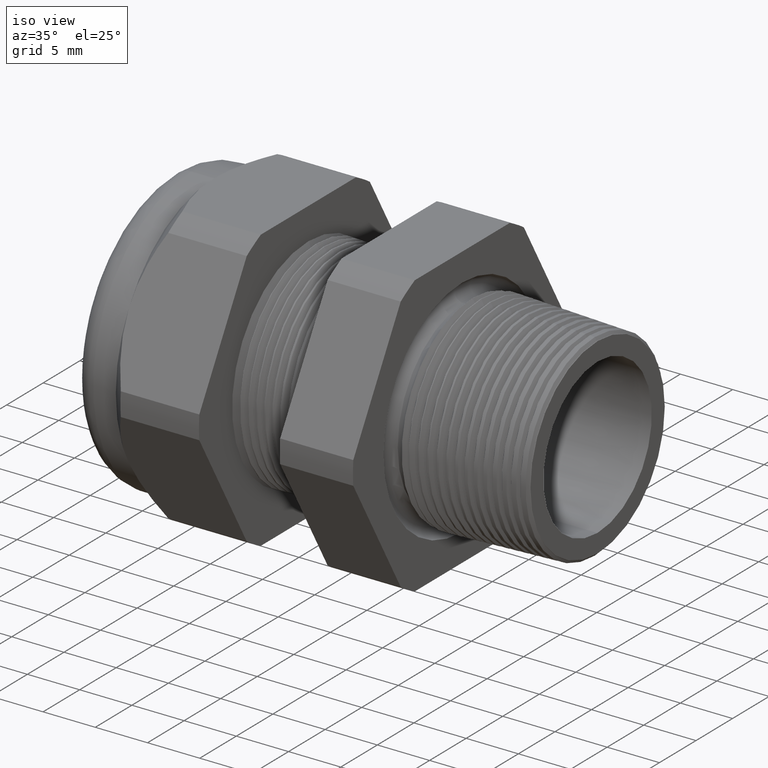
[diagram: clean part render]
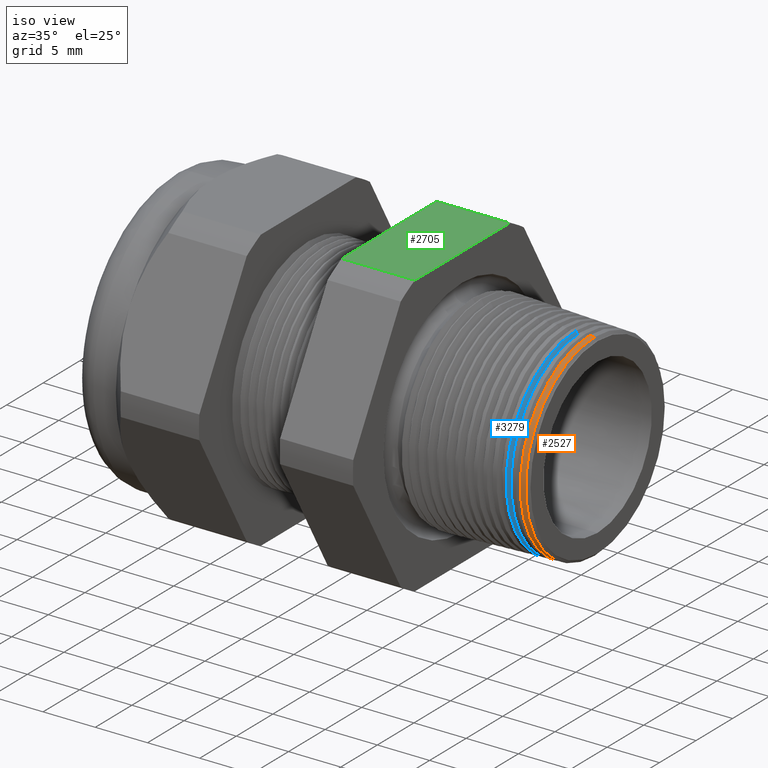
[diagram: same view with three faces highlighted in distinct colors, each labeled with its STEP entity id]
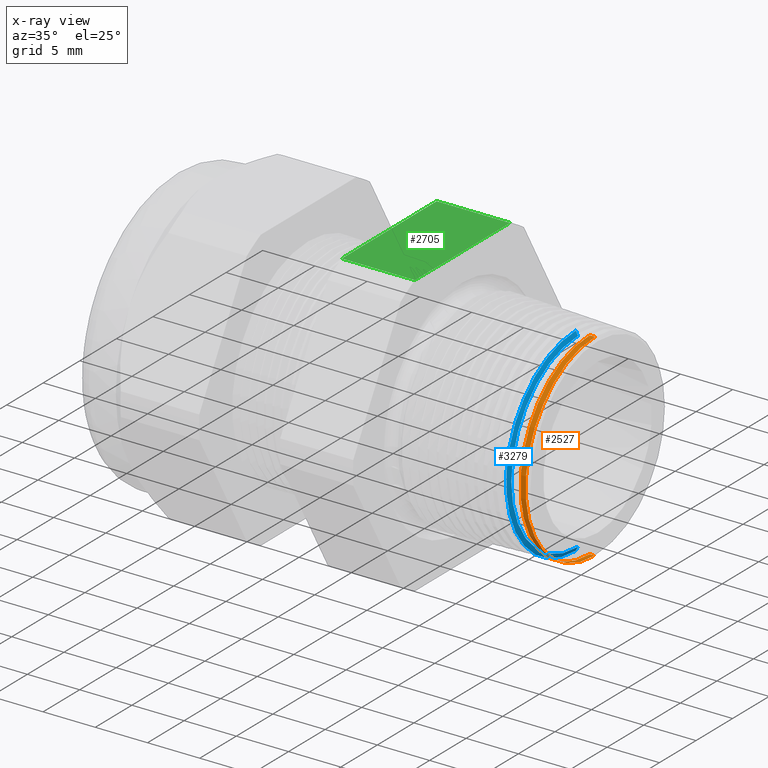
[diagram: x-ray of the same camera — body ghosted, the three highlighted faces saturated]
A machine part, iso view with three faces highlighted in distinct colors.
The next image is the same camera in x-ray (body ghosted, the three faces saturated) — at least one of them is partly hidden behind the body in this view.
Their STEP definitions:

[orange] entity #2527 — the highlighted conical surface has half-angle 2 deg.
#769 = CARTESIAN_POINT ( 'NONE',  ( 0.1892703024426583800, 0.0000000000000000000, 0.3723000518815622900 ) ) ;
#775 = CARTESIAN_POINT ( 'NONE',  ( 0.1892703024426583800, 4.563501851446686400E-017, -0.3723000518815622900 ) ) ;
#851 = CARTESIAN_POINT ( 'NONE',  ( 0.1699034186660586300, 4.567643034301885800E-017, -0.3729763583656983100 ) ) ;
#857 = CARTESIAN_POINT ( 'NONE',  ( 0.1699034186660586300, 0.0000000000000000000, 0.3729763583656983100 ) ) ;
#1515 = DIRECTION ( 'NONE',  ( -0.9993908270190959800, 4.273955692856259700E-018, -0.03489949670249376700 ) ) ;
#1516 = VECTOR ( 'NONE', #1515, 39.37007874015748100 ) ;
#1517 = CARTESIAN_POINT ( 'NONE',  ( 0.2000000000000000400, 4.554772048132102800E-017, -0.3719253625864463700 ) ) ;
#1524 = LINE ( 'NONE', #1517, #1516 ) ;
#1526 = DIRECTION ( 'NONE',  ( -0.9993908270190959800, 0.0000000000000000000, 0.03489949670249376700 ) ) ;
#1527 = VECTOR ( 'NONE', #1526, 39.37007874015748100 ) ;
#1528 = CARTESIAN_POINT ( 'NONE',  ( 0.2000000000000000400, 0.0000000000000000000, 0.3719253625864463700 ) ) ;
#1533 = LINE ( 'NONE', #1528, #1527 ) ;
#1977 = DIRECTION ( 'NONE',  ( 0.0000000000000000000, 0.0000000000000000000, -1.000000000000000000 ) ) ;
#1978 = DIRECTION ( 'NONE',  ( -1.000000000000000000, 0.0000000000000000000, 0.0000000000000000000 ) ) ;
#1979 = CARTESIAN_POINT ( 'NONE',  ( 0.1699034186660586300, 0.0000000000000000000, 0.0000000000000000000 ) ) ;
#1980 = AXIS2_PLACEMENT_3D ( 'NONE', #1979, #1978, #1977 ) ;
#1981 = CIRCLE ( 'NONE', #1980, 0.3729763583656982600 ) ;
#1994 = DIRECTION ( 'NONE',  ( 0.0000000000000000000, 0.0000000000000000000, 1.000000000000000000 ) ) ;
#1995 = DIRECTION ( 'NONE',  ( 1.000000000000000000, 0.0000000000000000000, 0.0000000000000000000 ) ) ;
#1996 = CARTESIAN_POINT ( 'NONE',  ( 0.1892703024426583800, 0.0000000000000000000, 0.0000000000000000000 ) ) ;
#1997 = AXIS2_PLACEMENT_3D ( 'NONE', #1996, #1995, #1994 ) ;
#2002 = CIRCLE ( 'NONE', #1997, 0.3723000518815622900 ) ;
#2524 = ORIENTED_EDGE ( 'NONE', *, *, #5442, .F. ) ;
#2525 = EDGE_LOOP ( 'NONE', ( #2526, #2524, #5438, #5417 ) ) ;
#2526 = ORIENTED_EDGE ( 'NONE', *, *, #5218, .F. ) ;
#2527 = ADVANCED_FACE ( 'NONE', ( #4242 ), #4241, .T. ) ;
#3560 = VERTEX_POINT ( 'NONE', #775 ) ;
#3563 = VERTEX_POINT ( 'NONE', #769 ) ;
#3611 = VERTEX_POINT ( 'NONE', #857 ) ;
#3614 = VERTEX_POINT ( 'NONE', #851 ) ;
#4236 = DIRECTION ( 'NONE',  ( 0.0000000000000000000, 0.0000000000000000000, 1.000000000000000000 ) ) ;
#4237 = DIRECTION ( 'NONE',  ( -1.000000000000000000, 0.0000000000000000000, 0.0000000000000000000 ) ) ;
#4238 = CARTESIAN_POINT ( 'NONE',  ( 0.2000000000000000400, 0.0000000000000000000, 0.0000000000000000000 ) ) ;
#4239 = AXIS2_PLACEMENT_3D ( 'NONE', #4238, #4237, #4236 ) ;
#4241 = CONICAL_SURFACE ( 'NONE', #4239, 0.3719253625864463700, 0.03490658503987938100 ) ;
#4242 = FACE_OUTER_BOUND ( 'NONE', #2525, .T. ) ;
#5215 = EDGE_CURVE ( 'NONE', #3563, #3611, #1533, .T. ) ;
#5218 = EDGE_CURVE ( 'NONE', #3560, #3614, #1524, .T. ) ;
#5416 = EDGE_CURVE ( 'NONE', #3614, #3611, #1981, .T. ) ;
#5417 = ORIENTED_EDGE ( 'NONE', *, *, #5416, .F. ) ;
#5438 = ORIENTED_EDGE ( 'NONE', *, *, #5215, .T. ) ;
#5442 = EDGE_CURVE ( 'NONE', #3563, #3560, #2002, .T. ) ;

[blue] entity #3279 — the highlighted conical surface has half-angle 62 deg.
#328 = DIRECTION ( 'NONE',  ( 0.0000000000000000000, 0.0000000000000000000, -1.000000000000000000 ) ) ;
#329 = DIRECTION ( 'NONE',  ( 1.000000000000000000, 0.0000000000000000000, 0.0000000000000000000 ) ) ;
#330 = CARTESIAN_POINT ( 'NONE',  ( 0.1262629719890789300, 0.0000000000000000000, 0.0000000000000000000 ) ) ;
#331 = AXIS2_PLACEMENT_3D ( 'NONE', #330, #329, #328 ) ;
#332 = DIRECTION ( 'NONE',  ( 0.0000000000000000000, 0.0000000000000000000, 1.000000000000000000 ) ) ;
#333 = DIRECTION ( 'NONE',  ( -1.000000000000000000, 0.0000000000000000000, 0.0000000000000000000 ) ) ;
#334 = CARTESIAN_POINT ( 'NONE',  ( 0.1100000000000000600, 0.0000000000000000000, 0.0000000000000000000 ) ) ;
#335 = AXIS2_PLACEMENT_3D ( 'NONE', #334, #333, #332 ) ;
#336 = CIRCLE ( 'NONE', #331, 0.3591487532021881400 ) ;
#337 = CONICAL_SURFACE ( 'NONE', #335, 0.3897349550272340400, 1.082104136236472300 ) ;
#338 = FACE_OUTER_BOUND ( 'NONE', #3280, .T. ) ;
#751 = CARTESIAN_POINT ( 'NONE',  ( 0.1262629719890789300, 4.494083331094707000E-017, -0.3591487532021881400 ) ) ;
#785 = CARTESIAN_POINT ( 'NONE',  ( 0.1262629719890789300, 0.0000000000000000000, 0.3591487532021881400 ) ) ;
#807 = DIRECTION ( 'NONE',  ( -0.4694715627859013500, 0.0000000000000000000, 0.8829475928589212200 ) ) ;
#808 = VECTOR ( 'NONE', #807, 39.37007874015748900 ) ;
#809 = CARTESIAN_POINT ( 'NONE',  ( 0.1100000000000000600, 0.0000000000000000000, 0.3897349550272340400 ) ) ;
#810 = LINE ( 'NONE', #809, #808 ) ;
#811 = CARTESIAN_POINT ( 'NONE',  ( 0.1179459735222785900, 0.0000000000000000000, 0.3747907523309440000 ) ) ;
#817 = CARTESIAN_POINT ( 'NONE',  ( 0.1179459735222785900, 4.593401316248373000E-017, -0.3747907523309440000 ) ) ;
#818 = DIRECTION ( 'NONE',  ( -0.4694715627859013500, 1.081298943409538200E-016, -0.8829475928589212200 ) ) ;
#819 = VECTOR ( 'NONE', #818, 39.37007874015748900 ) ;
#820 = CARTESIAN_POINT ( 'NONE',  ( 0.1100000000000000600, 4.772876651899397700E-017, -0.3897349550272340400 ) ) ;
#821 = LINE ( 'NONE', #820, #819 ) ;
#2855 = EDGE_CURVE ( 'NONE', #3574, #3571, #4864, .T. ) ;
#3279 = ADVANCED_FACE ( 'NONE', ( #338 ), #337, .T. ) ;
#3280 = EDGE_LOOP ( 'NONE', ( #3281, #3282, #3284, #3285 ) ) ;
#3281 = ORIENTED_EDGE ( 'NONE', *, *, #3569, .F. ) ;
#3282 = ORIENTED_EDGE ( 'NONE', *, *, #3283, .F. ) ;
#3283 = EDGE_CURVE ( 'NONE', #3554, #3536, #336, .T. ) ;
#3284 = ORIENTED_EDGE ( 'NONE', *, *, #3576, .T. ) ;
#3285 = ORIENTED_EDGE ( 'NONE', *, *, #2855, .T. ) ;
#3536 = VERTEX_POINT ( 'NONE', #751 ) ;
#3554 = VERTEX_POINT ( 'NONE', #785 ) ;
#3569 = EDGE_CURVE ( 'NONE', #3536, #3571, #821, .T. ) ;
#3571 = VERTEX_POINT ( 'NONE', #817 ) ;
#3574 = VERTEX_POINT ( 'NONE', #811 ) ;
#3576 = EDGE_CURVE ( 'NONE', #3554, #3574, #810, .T. ) ;
#4861 = DIRECTION ( 'NONE',  ( 0.0000000000000000000, 0.0000000000000000000, 1.000000000000000000 ) ) ;
#4862 = DIRECTION ( 'NONE',  ( 1.000000000000000000, 0.0000000000000000000, 0.0000000000000000000 ) ) ;
#4863 = AXIS2_PLACEMENT_3D ( 'NONE', #4868, #4862, #4861 ) ;
#4864 = CIRCLE ( 'NONE', #4863, 0.3747907523309440000 ) ;
#4868 = CARTESIAN_POINT ( 'NONE',  ( 0.1179459735222785900, 0.0000000000000000000, 0.0000000000000000000 ) ) ;

[green] entity #2705 — the highlighted planar face has unit normal (0, 0, 1).
#2122 = CARTESIAN_POINT ( 'NONE',  ( -0.5855905511811020400, 0.2553368167734530500, 0.5300000000000001400 ) ) ;
#2124 = CARTESIAN_POINT ( 'NONE',  ( -0.5855905511811020400, -0.2553368167734533200, 0.5299999999999999200 ) ) ;
#2168 = DIRECTION ( 'NONE',  ( 0.0000000000000000000, 1.000000000000000000, 0.0000000000000000000 ) ) ;
#2169 = VECTOR ( 'NONE', #2168, 39.37007874015748100 ) ;
#2170 = CARTESIAN_POINT ( 'NONE',  ( -0.5855905511811022600, 1.060000000000000100, 0.5300000000000001400 ) ) ;
#2171 = LINE ( 'NONE', #2170, #2169 ) ;
#2520 = EDGE_CURVE ( 'NONE', #2521, #2523, #4190, .T. ) ;
#2521 = VERTEX_POINT ( 'NONE', #4186 ) ;
#2523 = VERTEX_POINT ( 'NONE', #4243 ) ;
#2683 = EDGE_CURVE ( 'NONE', #2523, #5506, #4528, .T. ) ;
#2695 = ORIENTED_EDGE ( 'NONE', *, *, #5525, .F. ) ;
#2696 = ORIENTED_EDGE ( 'NONE', *, *, #2683, .F. ) ;
#2697 = ORIENTED_EDGE ( 'NONE', *, *, #2717, .T. ) ;
#2698 = EDGE_LOOP ( 'NONE', ( #2697, #2695, #2696, #2780 ) ) ;
#2705 = ADVANCED_FACE ( 'NONE', ( #4560 ), #4559, .T. ) ;
#2717 = EDGE_CURVE ( 'NONE', #2521, #5510, #4605, .T. ) ;
#2780 = ORIENTED_EDGE ( 'NONE', *, *, #2520, .F. ) ;
#4186 = CARTESIAN_POINT ( 'NONE',  ( -0.3099999999999998300, 0.2553368167734530500, 0.5300000000000001400 ) ) ;
#4187 = DIRECTION ( 'NONE',  ( 0.0000000000000000000, -1.000000000000000000, 0.0000000000000000000 ) ) ;
#4188 = VECTOR ( 'NONE', #4187, 39.37007874015748100 ) ;
#4189 = CARTESIAN_POINT ( 'NONE',  ( -0.3100000000000000000, 1.060000000000000100, 0.5300000000000001400 ) ) ;
#4190 = LINE ( 'NONE', #4189, #4188 ) ;
#4243 = CARTESIAN_POINT ( 'NONE',  ( -0.3099999999999998300, -0.2553368167734533200, 0.5299999999999999200 ) ) ;
#4525 = DIRECTION ( 'NONE',  ( -1.000000000000000000, 0.0000000000000000000, 0.0000000000000000000 ) ) ;
#4526 = VECTOR ( 'NONE', #4525, 39.37007874015748100 ) ;
#4527 = CARTESIAN_POINT ( 'NONE',  ( 0.2000000000000000400, -0.2553368167734533200, 0.5299999999999999200 ) ) ;
#4528 = LINE ( 'NONE', #4527, #4526 ) ;
#4555 = DIRECTION ( 'NONE',  ( 1.000000000000000000, 0.0000000000000000000, 0.0000000000000000000 ) ) ;
#4556 = DIRECTION ( 'NONE',  ( 0.0000000000000000000, 0.0000000000000000000, 1.000000000000000000 ) ) ;
#4557 = CARTESIAN_POINT ( 'NONE',  ( 0.2000000000000000400, -0.2553368167734530500, 0.5300000000000001400 ) ) ;
#4558 = AXIS2_PLACEMENT_3D ( 'NONE', #4557, #4556, #4555 ) ;
#4559 = PLANE ( 'NONE',  #4558 ) ;
#4560 = FACE_OUTER_BOUND ( 'NONE', #2698, .T. ) ;
#4602 = DIRECTION ( 'NONE',  ( -1.000000000000000000, 0.0000000000000000000, 0.0000000000000000000 ) ) ;
#4603 = VECTOR ( 'NONE', #4602, 39.37007874015748100 ) ;
#4604 = CARTESIAN_POINT ( 'NONE',  ( 0.2000000000000000400, 0.2553368167734530500, 0.5300000000000001400 ) ) ;
#4605 = LINE ( 'NONE', #4604, #4603 ) ;
#5506 = VERTEX_POINT ( 'NONE', #2124 ) ;
#5510 = VERTEX_POINT ( 'NONE', #2122 ) ;
#5525 = EDGE_CURVE ( 'NONE', #5506, #5510, #2171, .T. ) ;